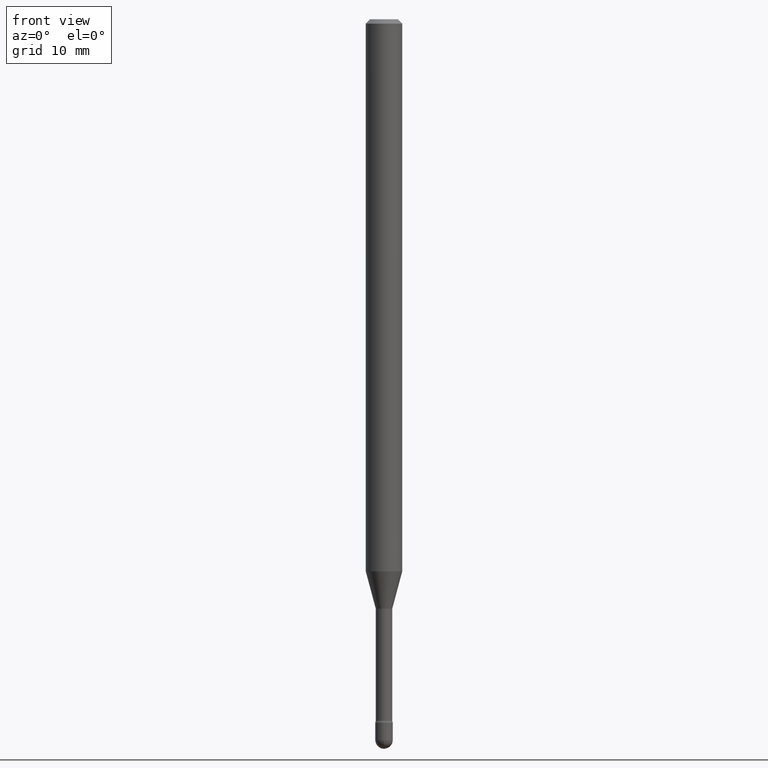
[diagram: clean part render]
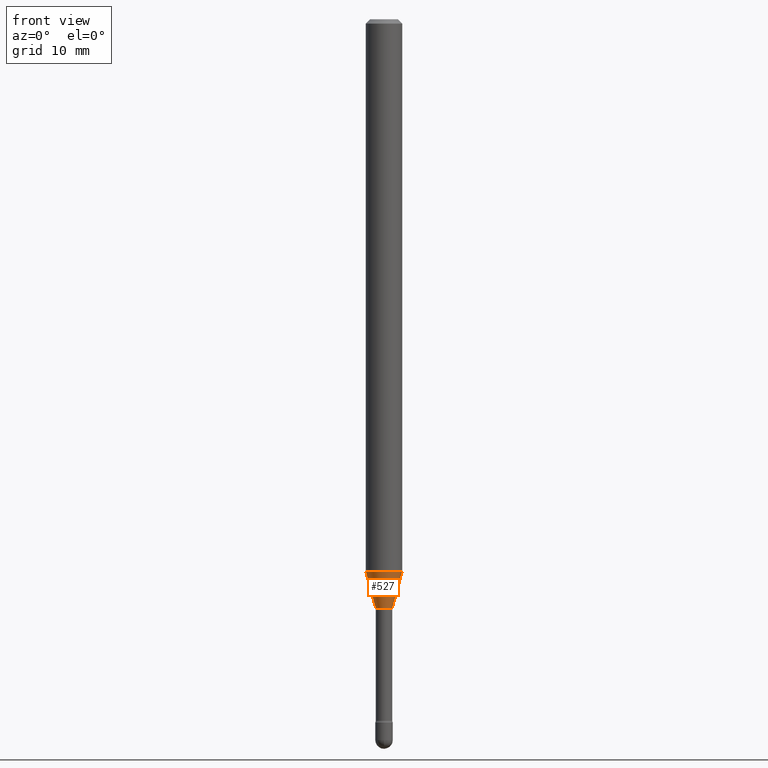
[diagram: same view with one face highlighted and labeled with its STEP entity id]
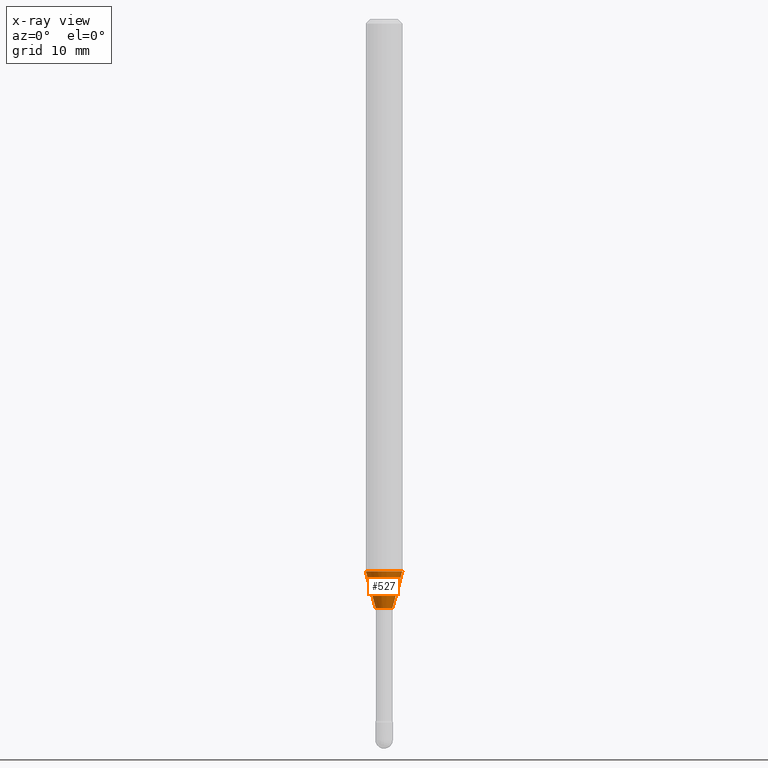
[diagram: x-ray of the same camera — body ghosted, the highlighted face saturated]
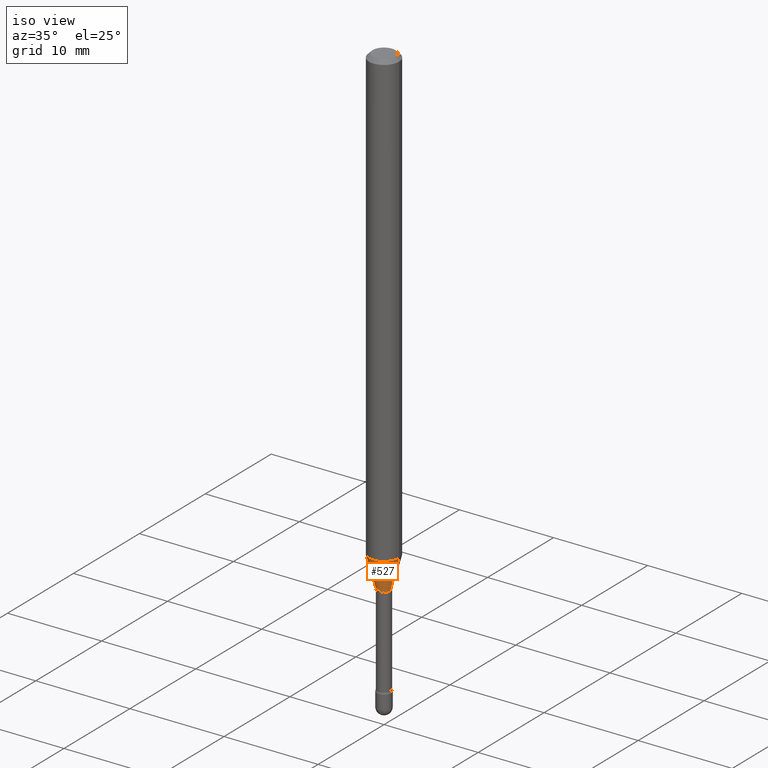
[diagram: same view with one face highlighted and labeled with its STEP entity id]
A machine part, front view. The second image highlights one B-rep face of the part: STEP entity #527.
The next image is the same camera in x-ray: the body ghosted, the highlighted face saturated — about 0% of this face is hidden behind the body in this view.
A second angle (iso view) of the same face is appended — the face is thin or edge-on in the first view.
In plain terms, the highlighted conical surface has half-angle 15 deg.
Its self-contained STEP definition (entity closure, byte-faithful):
#18 = ORIENTED_EDGE ( 'NONE', *, *, #228, .F. ) ;
#22 = CONICAL_SURFACE ( 'NONE', #451, 0.02871111260566397427, 0.2617993877991500740 ) ;
#50 = CARTESIAN_POINT ( 'NONE',  ( 4.935182261116898354E-29, -7.046132310049541601E-15, -2.018092501787273285 ) ) ;
#54 = DIRECTION ( 'NONE',  ( -2.445468806185136597E-29, 3.491481338843145583E-15, 1.000000000000000000 ) ) ;
#74 = DIRECTION ( 'NONE',  ( -0.2588190451025213501, 5.211531920934551042E-15, 0.9659258262890682012 ) ) ;
#86 = CARTESIAN_POINT ( 'NONE',  ( -0.02871111260566397427, -6.842127585074094010E-15, -2.018092501787273285 ) ) ;
#89 = EDGE_CURVE ( 'NONE', #137, #359, #219, .T. ) ;
#95 = CARTESIAN_POINT ( 'NONE',  ( 4.935182261116898354E-29, -7.046132310049541601E-15, -2.018092501787273285 ) ) ;
#96 = CIRCLE ( 'NONE', #167, 0.06250000000000000000 ) ;
#100 = CARTESIAN_POINT ( 'NONE',  ( -0.06250000000000000000, -6.161760863379818545E-15, -1.891990657300387735 ) ) ;
#115 = ORIENTED_EDGE ( 'NONE', *, *, #89, .T. ) ;
#119 = EDGE_CURVE ( 'NONE', #187, #285, #96, .T. ) ;
#123 = DIRECTION ( 'NONE',  ( 1.000000000000000000, -6.982962677686280121E-15, 0.000000000000000000 ) ) ;
#137 = VERTEX_POINT ( 'NONE', #280 ) ;
#143 = ORIENTED_EDGE ( 'NONE', *, *, #119, .F. ) ;
#144 = AXIS2_PLACEMENT_3D ( 'NONE', #50, #385, #123 ) ;
#159 = ORIENTED_EDGE ( 'NONE', *, *, #507, .T. ) ;
#167 = AXIS2_PLACEMENT_3D ( 'NONE', #277, #444, #510 ) ;
#174 = LINE ( 'NONE', #432, #327 ) ;
#177 = DIRECTION ( 'NONE',  ( 0.2588190451025213501, 1.565188264969621968E-15, 0.9659258262890682012 ) ) ;
#187 = VERTEX_POINT ( 'NONE', #100 ) ;
#219 = CIRCLE ( 'NONE', #144, 0.02871111260566397427 ) ;
#228 = EDGE_CURVE ( 'NONE', #137, #187, #305, .T. ) ;
#264 = DIRECTION ( 'NONE',  ( 1.000000000000000000, -6.982962677686280121E-15, 0.000000000000000000 ) ) ;
#270 = EDGE_LOOP ( 'NONE', ( #18, #115, #159, #143 ) ) ;
#277 = CARTESIAN_POINT ( 'NONE',  ( 4.626804134021810913E-29, -6.605850073229881161E-15, -1.891990657300387735 ) ) ;
#280 = CARTESIAN_POINT ( 'NONE',  ( -0.02871111260566397427, -6.501944224226956672E-15, -2.018092501787273285 ) ) ;
#285 = VERTEX_POINT ( 'NONE', #469 ) ;
#289 = VECTOR ( 'NONE', #74, 39.37007874015747433 ) ;
#305 = LINE ( 'NONE', #86, #289 ) ;
#327 = VECTOR ( 'NONE', #177, 39.37007874015747433 ) ;
#359 = VERTEX_POINT ( 'NONE', #536 ) ;
#385 = DIRECTION ( 'NONE',  ( -2.445468806185136597E-29, 3.491481338843145583E-15, 1.000000000000000000 ) ) ;
#432 = CARTESIAN_POINT ( 'NONE',  ( 0.02871111260566397427, -7.246620937809741928E-15, -2.018092501787273285 ) ) ;
#444 = DIRECTION ( 'NONE',  ( -2.445468806185136597E-29, 3.491481338843145583E-15, 1.000000000000000000 ) ) ;
#451 = AXIS2_PLACEMENT_3D ( 'NONE', #95, #54, #264 ) ;
#469 = CARTESIAN_POINT ( 'NONE',  ( 0.06250000000000000000, -7.042285240585273619E-15, -1.891990657300387735 ) ) ;
#479 = FACE_OUTER_BOUND ( 'NONE', #270, .T. ) ;
#507 = EDGE_CURVE ( 'NONE', #359, #285, #174, .T. ) ;
#510 = DIRECTION ( 'NONE',  ( 1.000000000000000000, -6.982962677686262766E-15, 0.000000000000000000 ) ) ;
#527 = ADVANCED_FACE ( 'NONE', ( #479 ), #22, .T. ) ;
#536 = CARTESIAN_POINT ( 'NONE',  ( 0.02871111260566397427, -7.246620937809741928E-15, -2.018092501787273285 ) ) ;